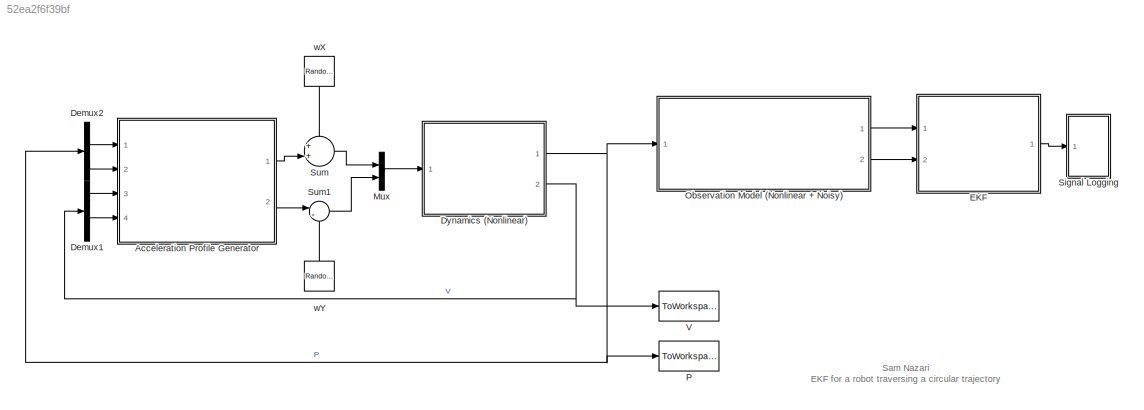
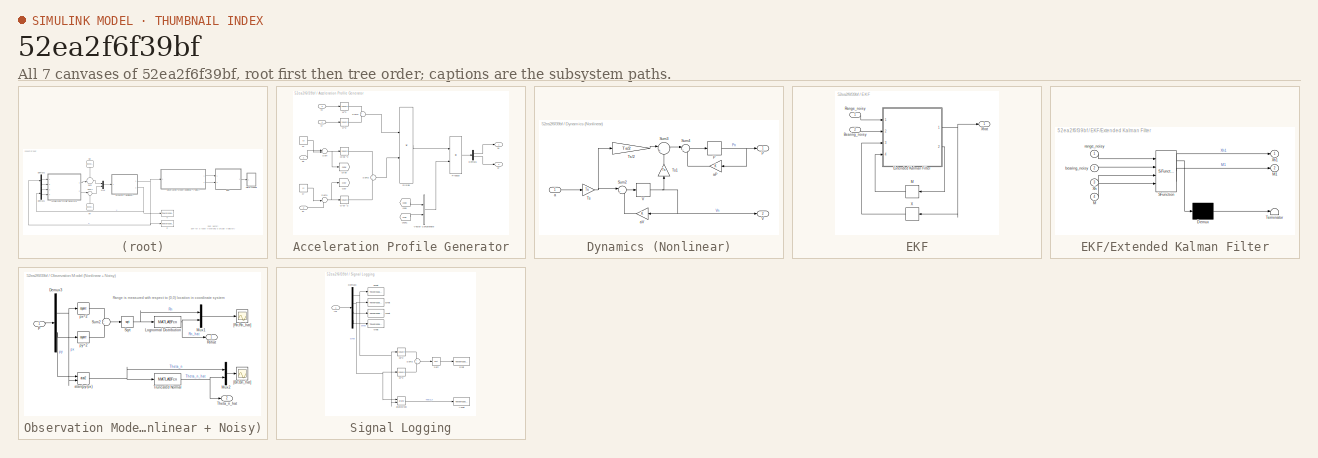
[diagram: thumbnail index - all 7 canvases of the model, root first then tree order]
MODEL slx_52ea2f6f39bf
KIND model
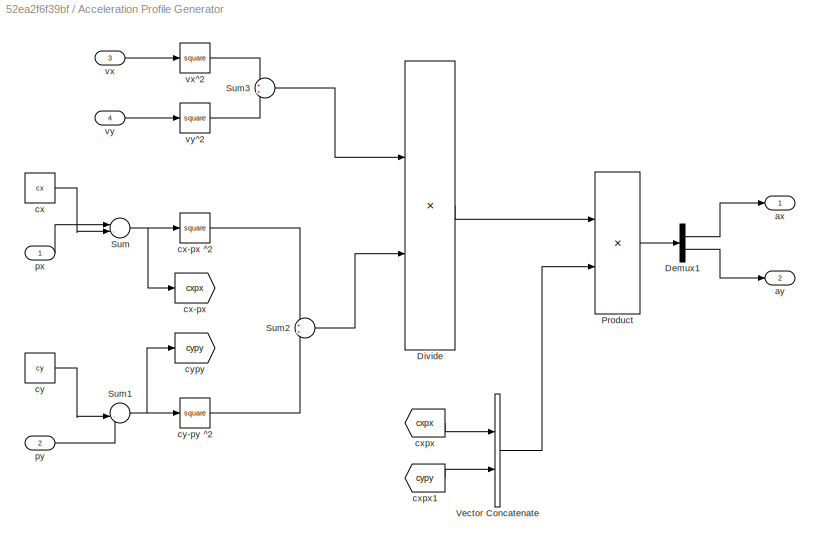
BLOCK [SubSystem] Acceleration Profile Generator
  FunctionWithSeparateData = off
  MaskHideContents = off
  MinAlgLoopOccurrences = off
  Opaque = off
  Ports = [4, 2]
  PropExecContextOutsideSubsystem = off
  RTWSystemCode = Auto
  RequestExecContextInheritance = off
BLOCK [Demux] Acceleration Profile Generator/Demux1
  DisplayOption = bar
  Outputs = 2
  Ports = [1, 2]
BLOCK [Product] Acceleration Profile Generator/Divide
  InputSameDT = off
  Inputs = */
  OutDataTypeStr = Inherit: Inherit via internal rule
  Ports = [2, 1]
  RndMeth = Floor
  SaturateOnIntegerOverflow = off
BLOCK [Product] Acceleration Profile Generator/Product
  InputSameDT = off
  OutDataTypeStr = Inherit: Inherit via internal rule
  Ports = [2, 1]
  RndMeth = Floor
  SaturateOnIntegerOverflow = off
BLOCK [Sum] Acceleration Profile Generator/Sum
  IconShape = round
  InputSameDT = off
  Inputs = |-+
  OutDataTypeStr = Inherit: Inherit via internal rule
  Ports = [2, 1]
  SaturateOnIntegerOverflow = off
BLOCK [Sum] Acceleration Profile Generator/Sum1
  IconShape = round
  InputSameDT = off
  Inputs = |-+
  OutDataTypeStr = Inherit: Inherit via internal rule
  Ports = [2, 1]
  SaturateOnIntegerOverflow = off
BLOCK [Sum] Acceleration Profile Generator/Sum2
  IconShape = round
  InputSameDT = off
  OutDataTypeStr = Inherit: Inherit via internal rule
  Ports = [2, 1]
  SaturateOnIntegerOverflow = off
BLOCK [Sum] Acceleration Profile Generator/Sum3
  IconShape = round
  InputSameDT = off
  OutDataTypeStr = Inherit: Inherit via internal rule
  Ports = [2, 1]
  SaturateOnIntegerOverflow = off
BLOCK [Concatenate] Acceleration Profile Generator/Vector Concatenate
  ConcatenateDimension = 2
  Ports = [2, 1]
BLOCK [Outport] Acceleration Profile Generator/ax
  IconDisplay = Port number
BLOCK [Outport] Acceleration Profile Generator/ay
  IconDisplay = Port number
  Port = 2
BLOCK [Constant] Acceleration Profile Generator/cx
  Value = cx
BLOCK [Goto] Acceleration Profile Generator/cx-px
  GotoTag = cxpx
BLOCK [Math] Acceleration Profile Generator/cx-px ^2
  Operator = square
  Ports = [1, 1]
BLOCK [From] Acceleration Profile Generator/cxpx
  GotoTag = cxpx
BLOCK [From] Acceleration Profile Generator/cxpx1
  GotoTag = cypy
BLOCK [Constant] Acceleration Profile Generator/cy
  Value = cy
BLOCK [Math] Acceleration Profile Generator/cy-py ^2
  Operator = square
  Ports = [1, 1]
BLOCK [Goto] Acceleration Profile Generator/cypy
  GotoTag = cypy
BLOCK [Inport] Acceleration Profile Generator/px
  IconDisplay = Port number
BLOCK [Inport] Acceleration Profile Generator/py
  IconDisplay = Port number
  Port = 2
BLOCK [Inport] Acceleration Profile Generator/vx
  IconDisplay = Port number
  Port = 3
BLOCK [Math] Acceleration Profile Generator/vx^2
  Operator = square
  Ports = [1, 1]
BLOCK [Inport] Acceleration Profile Generator/vy
  IconDisplay = Port number
  Port = 4
BLOCK [Math] Acceleration Profile Generator/vy^2
  Operator = square
  Ports = [1, 1]
BLOCK [Demux] Demux1
  DisplayOption = bar
  Outputs = 2
  Ports = [1, 2]
BLOCK [Demux] Demux2
  DisplayOption = bar
  Outputs = 2
  Ports = [1, 2]
BLOCK [SubSystem] Dynamics (Nonlinear)
  FunctionWithSeparateData = off
  MaskHideContents = off
  MinAlgLoopOccurrences = off
  Opaque = off
  Ports = [1, 2]
  PropExecContextOutsideSubsystem = off
  RTWSystemCode = Auto
  RequestExecContextInheritance = off
BLOCK [Delay] Dynamics (Nonlinear)/P
  DelayLength = 1
  InitialCondition = P0
  InputPortMap = u0
  Ports = [1, 1]
BLOCK [Outport] Dynamics (Nonlinear)/P 
  IconDisplay = Port number
BLOCK [Sum] Dynamics (Nonlinear)/Sum2
  IconShape = round
  InputSameDT = off
  Inputs = |++
  OutDataTypeStr = Inherit: Inherit via internal rule
  Ports = [2, 1]
  SaturateOnIntegerOverflow = off
BLOCK [Sum] Dynamics (Nonlinear)/Sum3
  IconShape = round
  InputSameDT = off
  Inputs = |++
  OutDataTypeStr = Inherit: Inherit via internal rule
  Ports = [2, 1]
  SaturateOnIntegerOverflow = off
BLOCK [Sum] Dynamics (Nonlinear)/Sum4
  IconShape = round
  InputSameDT = off
  Inputs = |++
  OutDataTypeStr = Inherit: Inherit via internal rule
  Ports = [2, 1]
  SaturateOnIntegerOverflow = off
BLOCK [Gain] Dynamics (Nonlinear)/Ts
  Gain = Ts
  OutDataTypeStr = Inherit: Inherit via internal rule
  ParamDataTypeStr = Inherit: Inherit via internal rule
  SaturateOnIntegerOverflow = off
BLOCK [Gain] Dynamics (Nonlinear)/Ts//2
  Gain = Ts/2
  OutDataTypeStr = Inherit: Inherit via internal rule
  ParamDataTypeStr = Inherit: Inherit via internal rule
  SaturateOnIntegerOverflow = off
BLOCK [Gain] Dynamics (Nonlinear)/Ts1
  Gain = Ts
  OutDataTypeStr = Inherit: Inherit via internal rule
  ParamDataTypeStr = Inherit: Inherit via internal rule
  SaturateOnIntegerOverflow = off
BLOCK [Delay] Dynamics (Nonlinear)/V
  DelayLength = 1
  InitialCondition = V0
  InputPortMap = u0
  Ports = [1, 1]
BLOCK [Outport] Dynamics (Nonlinear)/V 
  IconDisplay = Port number
  Port = 2
BLOCK [Inport] Dynamics (Nonlinear)/a
  IconDisplay = Port number
BLOCK [Gain] Dynamics (Nonlinear)/aP
  OutDataTypeStr = Inherit: Inherit via internal rule
  ParamDataTypeStr = Inherit: Inherit via internal rule
  SaturateOnIntegerOverflow = off
BLOCK [Gain] Dynamics (Nonlinear)/aV
  OutDataTypeStr = Inherit: Inherit via internal rule
  ParamDataTypeStr = Inherit: Inherit via internal rule
  SaturateOnIntegerOverflow = off
BLOCK [SubSystem] EKF
  FunctionWithSeparateData = off
  MaskHideContents = off
  MinAlgLoopOccurrences = off
  Opaque = off
  Ports = [2, 1]
  PropExecContextOutsideSubsystem = off
  RTWSystemCode = Auto
  RequestExecContextInheritance = off
BLOCK [Inport] EKF/Bearing_noisy
  IconDisplay = Port number
  Port = 2
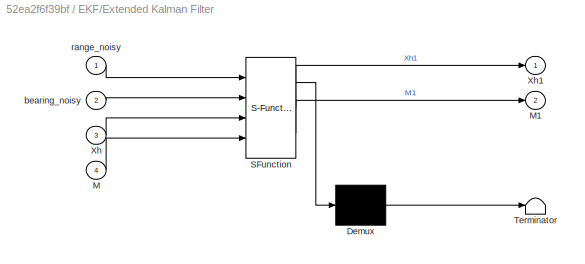
BLOCK [SubSystem] EKF/Extended Kalman Filter
  ErrorFcn = Stateflow.Translate.translate
  FunctionWithSeparateData = off
  MaskHideContents = off
  MinAlgLoopOccurrences = off
  Opaque = off
  PermitHierarchicalResolution = ExplicitOnly
  Ports = [4, 2]
  PropExecContextOutsideSubsystem = off
  RTWSystemCode = Auto
  RequestExecContextInheritance = off
  SFBlockType = MATLAB Function
  TreatAsAtomicUnit = on
BLOCK [Demux] EKF/Extended Kalman Filter/ Demux 
  Outputs = 1
  Ports = [1, 1]
BLOCK [S-Function] EKF/Extended Kalman Filter/ SFunction 
  EnableBusSupport = on
  FunctionName = sf_sfun
  PortCounts = [4 3]
  Ports = [4, 3]
  Tag = Stateflow S-Function EKFSim 2
BLOCK [Terminator] EKF/Extended Kalman Filter/ Terminator 
BLOCK [Inport] EKF/Extended Kalman Filter/M
  IconDisplay = Port number
  Port = 4
BLOCK [Outport] EKF/Extended Kalman Filter/M1
  IconDisplay = Port number
  Port = 2
BLOCK [Inport] EKF/Extended Kalman Filter/Xh
  IconDisplay = Port number
  Port = 3
BLOCK [Outport] EKF/Extended Kalman Filter/Xh1
  IconDisplay = Port number
BLOCK [Inport] EKF/Extended Kalman Filter/bearing_noisy
  IconDisplay = Port number
  Port = 2
BLOCK [Inport] EKF/Extended Kalman Filter/range_noisy
  IconDisplay = Port number
BLOCK [Delay] EKF/M
  DelayLength = 1
  InitialCondition = zeros(4,4)
  InputPortMap = u0
  Ports = [1, 1]
BLOCK [Inport] EKF/Range_noisy
  IconDisplay = Port number
BLOCK [Delay] EKF/X
  DelayLength = 1
  InitialCondition = [P0;V0]
  InputPortMap = u0
  Ports = [1, 1]
BLOCK [Outport] EKF/Xhat
  IconDisplay = Port number
BLOCK [Mux] Mux
  DisplayOption = bar
  Inputs = 2
  Ports = [2, 1]
BLOCK [SubSystem] Observation Model (Nonlinear + Noisy)
  FunctionWithSeparateData = off
  MaskHideContents = off
  MinAlgLoopOccurrences = off
  Opaque = off
  Ports = [1, 2]
  PropExecContextOutsideSubsystem = off
  RTWSystemCode = Auto
  RequestExecContextInheritance = off
BLOCK [Demux] Observation Model (Nonlinear + Noisy)/Demux3
  DisplayOption = bar
  Outputs = 2
  Ports = [1, 2]
BLOCK [MATLABFcn] Observation Model (Nonlinear + Noisy)/Lognormal Distribution
  MATLABFcn = u*randraw('Lognormal',[0 sigR])
  Ports = [1, 1]
BLOCK [Mux] Observation Model (Nonlinear + Noisy)/Mux1
  DisplayOption = bar
  Inputs = 2
  Ports = [2, 1]
BLOCK [Mux] Observation Model (Nonlinear + Noisy)/Mux2
  DisplayOption = bar
  Inputs = 2
  Ports = [2, 1]
BLOCK [Inport] Observation Model (Nonlinear + Noisy)/P 
  IconDisplay = Port number
BLOCK [Outport] Observation Model (Nonlinear + Noisy)/Rnhat 
  IconDisplay = Port number
BLOCK [Sqrt] Observation Model (Nonlinear + Noisy)/Sqrt
BLOCK [Sum] Observation Model (Nonlinear + Noisy)/Sum2
  IconShape = round
  InputSameDT = off
  OutDataTypeStr = Inherit: Inherit via internal rule
  Ports = [2, 1]
  SaturateOnIntegerOverflow = off
BLOCK [Outport] Observation Model (Nonlinear + Noisy)/Theta_n_hat 
  IconDisplay = Port number
  Port = 2
BLOCK [MATLABFcn] Observation Model (Nonlinear + Noisy)/Truncated Normal
  MATLABFcn = u+randraw('normaltrunc',[-Z,Z,0,sigB])
  Ports = [1, 1]
BLOCK [Scope] Observation Model (Nonlinear + Noisy)/[Bn;Bn_hat]
  Floating = off
  LimitDataPoints = off
  NumInputPorts = 1
  Ports = [1]
  SampleTime = 0
  SaveName = Bnhat
  SaveToWorkspace = on
  ShowLegends = off
BLOCK [Scope] Observation Model (Nonlinear + Noisy)/[Rn;Rn_hat]
  Floating = off
  LimitDataPoints = off
  NumInputPorts = 1
  Ports = [1]
  SampleTime = 0
  SaveName = Rnhat
  SaveToWorkspace = on
  ShowLegends = off
BLOCK [Trigonometry] Observation Model (Nonlinear + Noisy)/atan(py//px)
  Operator = atan2
  Ports = [2, 1]
BLOCK [Math] Observation Model (Nonlinear + Noisy)/px^2
  Operator = square
  Ports = [1, 1]
BLOCK [Math] Observation Model (Nonlinear + Noisy)/py^2
  Operator = square
  Ports = [1, 1]
BLOCK [ToWorkspace] P 
  MaxDataPoints = inf
  Ports = [1]
  SampleTime = -1
  VariableName = P
BLOCK [SubSystem] Signal Logging
  FunctionWithSeparateData = off
  MaskHideContents = off
  MinAlgLoopOccurrences = off
  Opaque = off
  Ports = [1]
  PropExecContextOutsideSubsystem = off
  RTWSystemCode = Auto
  RequestExecContextInheritance = off
BLOCK [ToWorkspace] Signal Logging/Azhat 
  MaxDataPoints = inf
  Ports = [1]
  SampleTime = -1
  VariableName = Azhat
BLOCK [Demux] Signal Logging/Demux3
  DisplayOption = bar
  Ports = [1, 4]
BLOCK [Inport] Signal Logging/In1
  IconDisplay = Port number
BLOCK [ToWorkspace] Signal Logging/Rhat
  MaxDataPoints = inf
  Ports = [1]
  SampleTime = -1
  VariableName = Rhat
BLOCK [Sqrt] Signal Logging/Sqrt
BLOCK [Sum] Signal Logging/Sum2
  IconShape = round
  InputSameDT = off
  OutDataTypeStr = Inherit: Inherit via internal rule
  Ports = [2, 1]
  SaturateOnIntegerOverflow = off
BLOCK [Trigonometry] Signal Logging/atan(py//px)
  Operator = atan2
  Ports = [2, 1]
BLOCK [Math] Signal Logging/px^2
  Operator = square
  Ports = [1, 1]
BLOCK [ToWorkspace] Signal Logging/pxhat
  MaxDataPoints = inf
  Ports = [1]
  SampleTime = -1
  VariableName = pxhat
BLOCK [Math] Signal Logging/py^2
  Operator = square
  Ports = [1, 1]
BLOCK [ToWorkspace] Signal Logging/pyhat
  MaxDataPoints = inf
  Ports = [1]
  SampleTime = -1
  VariableName = pyhat
BLOCK [ToWorkspace] Signal Logging/vxhat
  MaxDataPoints = inf
  Ports = [1]
  SampleTime = -1
  VariableName = vxhat
BLOCK [ToWorkspace] Signal Logging/vyhat
  MaxDataPoints = inf
  Ports = [1]
  SampleTime = -1
  VariableName = vyhat
BLOCK [Sum] Sum
  IconShape = round
  InputSameDT = off
  Inputs = ++|
  OutDataTypeStr = Inherit: Inherit via internal rule
  Ports = [2, 1]
  SaturateOnIntegerOverflow = off
BLOCK [Sum] Sum1
  IconShape = round
  InputSameDT = off
  Inputs = |++
  OutDataTypeStr = Inherit: Inherit via internal rule
  Ports = [2, 1]
  SaturateOnIntegerOverflow = off
BLOCK [ToWorkspace] V 
  MaxDataPoints = inf
  Ports = [1]
  SampleTime = -1
  VariableName = V
BLOCK [RandomNumber] wX
  Mean = muWx
  SampleTime = Ts
  Seed = 2^wx
  Variance = sigWx
BLOCK [RandomNumber] wY
  Mean = muWy
  SampleTime = Ts
  Seed = 2^wy
  Variance = sigWy
ANNOTATION (root): Sam Nazari EKF for a robot traversing a circular trajectory
ANNOTATION Observation Model (Nonlinear + Noisy): Range is measured with respect to (0,0) location in coordinate system
LINE Acceleration Profile Generator/Demux1:1 -> Acceleration Profile Generator/ax:1
LINE Acceleration Profile Generator/Demux1:2 -> Acceleration Profile Generator/ay:1
LINE Acceleration Profile Generator/Divide:1 -> Acceleration Profile Generator/Product:1
LINE Acceleration Profile Generator/Product:1 -> Acceleration Profile Generator/Demux1:1
NET Acceleration Profile Generator/Sum1:1 -> Acceleration Profile Generator/cy-py ^2:1, Acceleration Profile Generator/cypy:1
LINE Acceleration Profile Generator/Sum2:1 -> Acceleration Profile Generator/Divide:2
LINE Acceleration Profile Generator/Sum3:1 -> Acceleration Profile Generator/Divide:1
NET Acceleration Profile Generator/Sum:1 -> Acceleration Profile Generator/cx-px ^2:1, Acceleration Profile Generator/cx-px:1
LINE Acceleration Profile Generator/Vector Concatenate:1 -> Acceleration Profile Generator/Product:2
LINE Acceleration Profile Generator/cx-px ^2:1 -> Acceleration Profile Generator/Sum2:1
LINE Acceleration Profile Generator/cx:1 -> Acceleration Profile Generator/Sum:2
LINE Acceleration Profile Generator/cxpx1:1 -> Acceleration Profile Generator/Vector Concatenate:2
LINE Acceleration Profile Generator/cxpx:1 -> Acceleration Profile Generator/Vector Concatenate:1
LINE Acceleration Profile Generator/cy-py ^2:1 -> Acceleration Profile Generator/Sum2:2
LINE Acceleration Profile Generator/cy:1 -> Acceleration Profile Generator/Sum1:2
LINE Acceleration Profile Generator/px:1 -> Acceleration Profile Generator/Sum:1
LINE Acceleration Profile Generator/py:1 -> Acceleration Profile Generator/Sum1:1
LINE Acceleration Profile Generator/vx:1 -> Acceleration Profile Generator/vx^2:1
LINE Acceleration Profile Generator/vx^2:1 -> Acceleration Profile Generator/Sum3:1
LINE Acceleration Profile Generator/vy:1 -> Acceleration Profile Generator/vy^2:1
LINE Acceleration Profile Generator/vy^2:1 -> Acceleration Profile Generator/Sum3:2
LINE Acceleration Profile Generator:1 -> Sum:2
LINE Acceleration Profile Generator:2 -> Sum1:1
LINE Demux1:1 -> Acceleration Profile Generator:3
LINE Demux1:2 -> Acceleration Profile Generator:4
LINE Demux2:1 -> Acceleration Profile Generator:1
LINE Demux2:2 -> Acceleration Profile Generator:2
NET Dynamics (Nonlinear)/P:1 -> Dynamics (Nonlinear)/P :1, Dynamics (Nonlinear)/aP:1
LINE Dynamics (Nonlinear)/Sum2:1 -> Dynamics (Nonlinear)/V:1
LINE Dynamics (Nonlinear)/Sum3:1 -> Dynamics (Nonlinear)/Sum4:1
LINE Dynamics (Nonlinear)/Sum4:1 -> Dynamics (Nonlinear)/P:1
LINE Dynamics (Nonlinear)/Ts//2:1 -> Dynamics (Nonlinear)/Sum3:1
LINE Dynamics (Nonlinear)/Ts1:1 -> Dynamics (Nonlinear)/Sum3:2
NET Dynamics (Nonlinear)/Ts:1 -> Dynamics (Nonlinear)/Sum2:1, Dynamics (Nonlinear)/Ts//2:1
NET Dynamics (Nonlinear)/V:1 -> Dynamics (Nonlinear)/Ts1:1, Dynamics (Nonlinear)/V :1, Dynamics (Nonlinear)/aV:1
LINE Dynamics (Nonlinear)/a:1 -> Dynamics (Nonlinear)/Ts:1
LINE Dynamics (Nonlinear)/aP:1 -> Dynamics (Nonlinear)/Sum4:2
LINE Dynamics (Nonlinear)/aV:1 -> Dynamics (Nonlinear)/Sum2:2
NET Dynamics (Nonlinear):1 -> Demux2:1, Observation Model (Nonlinear + Noisy):1, P :1
NET Dynamics (Nonlinear):2 -> Demux1:1, V :1
LINE EKF/Bearing_noisy:1 -> EKF/Extended Kalman Filter:2
NET EKF/Extended Kalman Filter:1 -> EKF/X:1, EKF/Xhat:1
LINE EKF/Extended Kalman Filter:2 -> EKF/M:1
LINE EKF/M:1 -> EKF/Extended Kalman Filter:4
LINE EKF/Range_noisy:1 -> EKF/Extended Kalman Filter:1
LINE EKF/X:1 -> EKF/Extended Kalman Filter:3
LINE EKF:1 -> Signal Logging:1
LINE Mux:1 -> Dynamics (Nonlinear):1
NET Observation Model (Nonlinear + Noisy)/Demux3:1 -> Observation Model (Nonlinear + Noisy)/atan(py//px):2, Observation Model (Nonlinear + Noisy)/px^2:1
NET Observation Model (Nonlinear + Noisy)/Demux3:2 -> Observation Model (Nonlinear + Noisy)/atan(py//px):1, Observation Model (Nonlinear + Noisy)/py^2:1
NET Observation Model (Nonlinear + Noisy)/Lognormal Distribution:1 -> Observation Model (Nonlinear + Noisy)/Mux1:2, Observation Model (Nonlinear + Noisy)/Rnhat :1
LINE Observation Model (Nonlinear + Noisy)/Mux1:1 -> Observation Model (Nonlinear + Noisy)/[Rn;Rn_hat]:1
LINE Observation Model (Nonlinear + Noisy)/Mux2:1 -> Observation Model (Nonlinear + Noisy)/[Bn;Bn_hat]:1
LINE Observation Model (Nonlinear + Noisy)/P :1 -> Observation Model (Nonlinear + Noisy)/Demux3:1
NET Observation Model (Nonlinear + Noisy)/Sqrt:1 -> Observation Model (Nonlinear + Noisy)/Lognormal Distribution:1, Observation Model (Nonlinear + Noisy)/Mux1:1
LINE Observation Model (Nonlinear + Noisy)/Sum2:1 -> Observation Model (Nonlinear + Noisy)/Sqrt:1
NET Observation Model (Nonlinear + Noisy)/Truncated Normal:1 -> Observation Model (Nonlinear + Noisy)/Mux2:2, Observation Model (Nonlinear + Noisy)/Theta_n_hat :1
NET Observation Model (Nonlinear + Noisy)/atan(py//px):1 -> Observation Model (Nonlinear + Noisy)/Mux2:1, Observation Model (Nonlinear + Noisy)/Truncated Normal:1
LINE Observation Model (Nonlinear + Noisy)/px^2:1 -> Observation Model (Nonlinear + Noisy)/Sum2:1
LINE Observation Model (Nonlinear + Noisy)/py^2:1 -> Observation Model (Nonlinear + Noisy)/Sum2:2
LINE Observation Model (Nonlinear + Noisy):1 -> EKF:1
LINE Observation Model (Nonlinear + Noisy):2 -> EKF:2
NET Signal Logging/Demux3:1 -> Signal Logging/atan(py//px):2, Signal Logging/px^2:1, Signal Logging/pxhat:1
NET Signal Logging/Demux3:2 -> Signal Logging/atan(py//px):1, Signal Logging/py^2:1, Signal Logging/pyhat:1
LINE Signal Logging/Demux3:3 -> Signal Logging/vxhat:1
LINE Signal Logging/Demux3:4 -> Signal Logging/vyhat:1
LINE Signal Logging/In1:1 -> Signal Logging/Demux3:1
LINE Signal Logging/Sqrt:1 -> Signal Logging/Rhat:1
LINE Signal Logging/Sum2:1 -> Signal Logging/Sqrt:1
LINE Signal Logging/atan(py//px):1 -> Signal Logging/Azhat :1
LINE Signal Logging/px^2:1 -> Signal Logging/Sum2:1
LINE Signal Logging/py^2:1 -> Signal Logging/Sum2:2
LINE Sum1:1 -> Mux:2
LINE Sum:1 -> Mux:1
LINE wX:1 -> Sum:1
LINE wY:1 -> Sum1:2
note: NET lines group one-source signal fan-out (src -> all destinations, sorted); 1:1 wires keep LINE
